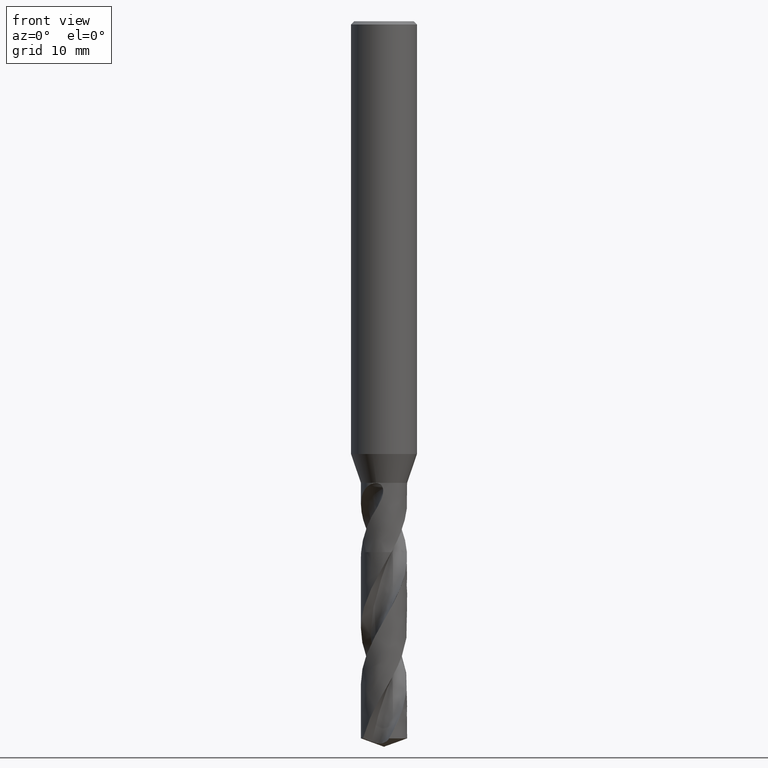
[diagram: clean part render]
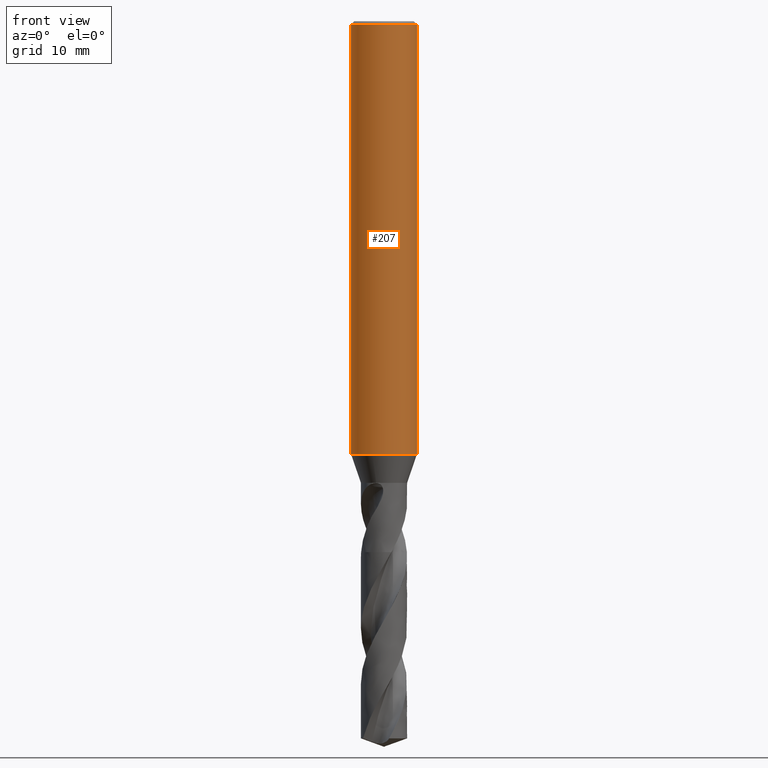
[diagram: same view with one face highlighted and labeled with its STEP entity id]
A machine part, front view. The second image highlights one B-rep face of the part: STEP entity #207.
In plain terms, the highlighted face is a freeform B-spline surface patch.
Its self-contained STEP definition (entity closure, byte-faithful):
#73 = VERTEX_POINT('', #74);
#74 = CARTESIAN_POINT('', (-3., 2.59435301165371E-15, -39.369));
#82 = EDGE_CURVE('', #73, #73, #83, .T.);
#83 = CIRCLE('', #84, 3.);
#84 = AXIS2_PLACEMENT_3D('', #85, #86, #87);
#85 = CARTESIAN_POINT('', (1.47610107209037E-31, 2.41065599178161E-15, -39.369));
#86 = DIRECTION('', (3.74939945665464E-33, 6.12323399573677E-17, -1.));
#87 = DIRECTION('', (-1., 6.12323399573677E-17, 0.));
#156 = VERTEX_POINT('', #157);
#157 = CARTESIAN_POINT('', (-3., 2.02066721859313E-16, -0.299999999999997));
#173 = EDGE_CURVE('', #156, #156, #174, .T.);
#174 = CIRCLE('', #175, 3.);
#175 = AXIS2_PLACEMENT_3D('', #176, #177, #178);
#176 = CARTESIAN_POINT('', (1.12481983699637E-33, 1.836970198721E-17, -0.299999999999997));
#177 = DIRECTION('', (3.74939945665464E-33, 6.12323399573677E-17, -1.));
#178 = DIRECTION('', (-1., 6.12323399573677E-17, 0.));
#207 = ADVANCED_FACE('', (#208), #219, .T.);
#208 = FACE_OUTER_BOUND('', #209, .T.);
#209 = EDGE_LOOP('', (#210, #216, #217, #218));
#210 = ORIENTED_EDGE('', *, *, #211, .T.);
#211 = EDGE_CURVE('', #73, #156, #212, .T.);
#212 = LINE('', #213, #214);
#213 = CARTESIAN_POINT('', (-3., 2.59435301165371E-15, -39.369));
#214 = VECTOR('', #215, 39.069);
#215 = DIRECTION('', (0., -2.3922862897944E-15, 39.069));
#216 = ORIENTED_EDGE('', *, *, #173, .T.);
#217 = ORIENTED_EDGE('', *, *, #211, .F.);
#218 = ORIENTED_EDGE('', *, *, #82, .F.);
#219 = (
   BOUNDED_SURFACE ()
   B_SPLINE_SURFACE (1, 2, ((#220, #221, #222, #223, #224, #225, #226, #227, #228), (#229, #230, #231, #232, #233, #234, #235, #236, #237)), .UNSPECIFIED., .F., .T., .U.)
   B_SPLINE_SURFACE_WITH_KNOTS ((2, 2), (3, 2, 2, 2, 3), (0., 1.), (0., 4.71238898038469, 9.42477796076938, 14.1371669411541, 18.8495559215388), .UNSPECIFIED.)
   GEOMETRIC_REPRESENTATION_ITEM ()
   RATIONAL_B_SPLINE_SURFACE (((1., 0.707106781186548, 1., 0.707106781186548, 1., 0.707106781186548, 1., 0.707106781186548, 1.), (1., 0.707106781186548, 1., 0.707106781186548, 1., 0.707106781186548, 1., 0.707106781186548, 1.)))
   REPRESENTATION_ITEM ('')
   SURFACE ()
);
#220 = CARTESIAN_POINT('', (-3., 2.59435301165371E-15, -39.369));
#221 = CARTESIAN_POINT('', (-3., 3., -39.369));
#222 = CARTESIAN_POINT('', (1.4791141972894E-31, 3., -39.369));
#223 = CARTESIAN_POINT('', (3., 3., -39.369));
#224 = CARTESIAN_POINT('', (3., 2.59435301165371E-15, -39.369));
#225 = CARTESIAN_POINT('', (3., -3., -39.369));
#226 = CARTESIAN_POINT('', (3.67394039744206E-16, -3., -39.369));
#227 = CARTESIAN_POINT('', (-3., -3., -39.369));
#228 = CARTESIAN_POINT('', (-3., 2.59435301165371E-15, -39.369));
#229 = CARTESIAN_POINT('', (-3., 2.02066721859313E-16, -0.299999999999997));
#230 = CARTESIAN_POINT('', (-3., 3., -0.299999999999997));
#231 = CARTESIAN_POINT('', (0., 3., -0.299999999999997));
#232 = CARTESIAN_POINT('', (3., 3., -0.299999999999997));
#233 = CARTESIAN_POINT('', (3., 2.02066721859313E-16, -0.299999999999997));
#234 = CARTESIAN_POINT('', (3., -3., -0.299999999999997));
#235 = CARTESIAN_POINT('', (3.67394039744206E-16, -3., -0.299999999999997));
#236 = CARTESIAN_POINT('', (-3., -3., -0.299999999999997));
#237 = CARTESIAN_POINT('', (-3., 2.02066721859313E-16, -0.299999999999997));